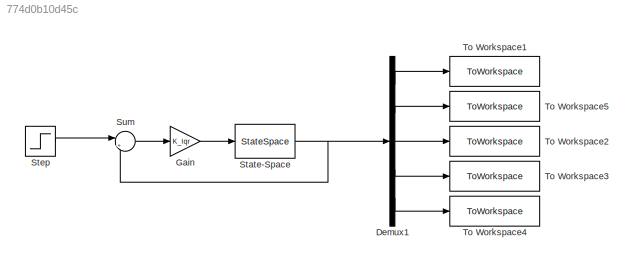
MODEL slx_774d0b10d45c
KIND model
CONFIG AbsTol = auto
CONFIG EnableMultiTasking = off
CONFIG FixedStep = auto
CONFIG MaxStep = auto
CONFIG MinStep = auto
CONFIG RelTol = 1e-3
CONFIG SampleTimeConstraint = Unconstrained
CONFIG Solver = VariableStepAuto
CONFIG SolverName = VariableStepAuto
CONFIG StartTime = 0.0
CONFIG StopTime = 10.0
BLOCK [Demux] Demux1
  Outputs = 5
  Ports = [1, 5]
BLOCK [Gain] Gain
  Gain = K_lqr
  Multiplication = Matrix(K*u)
BLOCK [StateSpace] State-Space
  A = a_h
  B = b_h_sf
  C = c_h
  D = d_h_sf
  InitialCondition = x0
  Ports = [1, 1]
BLOCK [Step] Step
  After = reference'
  Before = x0'
  SampleTime = 0
  VectorParams1D = off
BLOCK [Sum] Sum
  Inputs = |+-
  Ports = [2, 1]
BLOCK [ToWorkspace] To Workspace1
  FixptAsFi = on
  MaxDataPoints = inf
  Ports = [1]
  SampleTime = -1
  VariableName = u
BLOCK [ToWorkspace] To Workspace2
  FixptAsFi = on
  MaxDataPoints = inf
  Ports = [1]
  SampleTime = -1
  VariableName = q
BLOCK [ToWorkspace] To Workspace3
  FixptAsFi = on
  MaxDataPoints = inf
  Ports = [1]
  SampleTime = -1
  VariableName = tt
BLOCK [ToWorkspace] To Workspace4
  FixptAsFi = on
  MaxDataPoints = inf
  Ports = [1]
  SampleTime = -1
  VariableName = h
BLOCK [ToWorkspace] To Workspace5
  FixptAsFi = on
  MaxDataPoints = inf
  Ports = [1]
  SampleTime = -1
  VariableName = w
LINE Demux1:1 -> To Workspace1:1
LINE Demux1:2 -> To Workspace5:1
LINE Demux1:3 -> To Workspace2:1
LINE Demux1:4 -> To Workspace3:1
LINE Demux1:5 -> To Workspace4:1
LINE Gain:1 -> State-Space:1
NET State-Space:1 -> Demux1:1, Sum:2
LINE Step:1 -> Sum:1
LINE Sum:1 -> Gain:1
note: NET lines group one-source signal fan-out (src -> all destinations, sorted); 1:1 wires keep LINE
